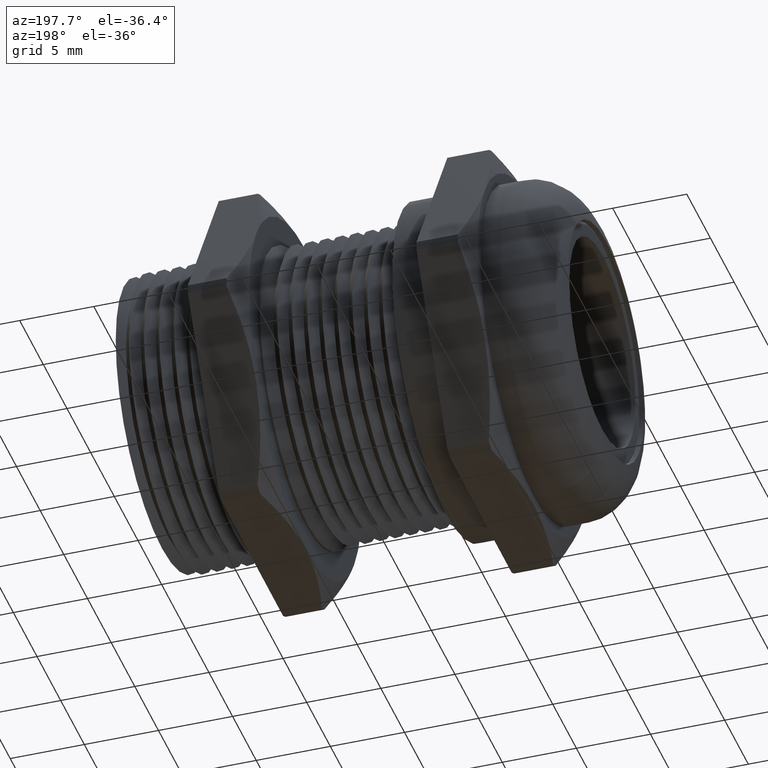
[diagram: clean part render]
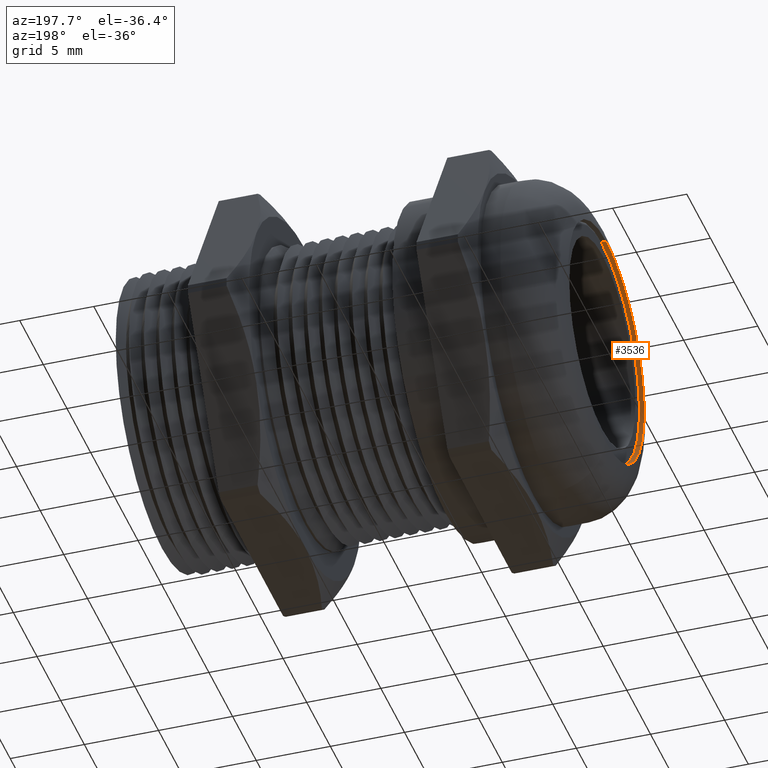
[diagram: same view with one face highlighted and labeled with its STEP entity id]
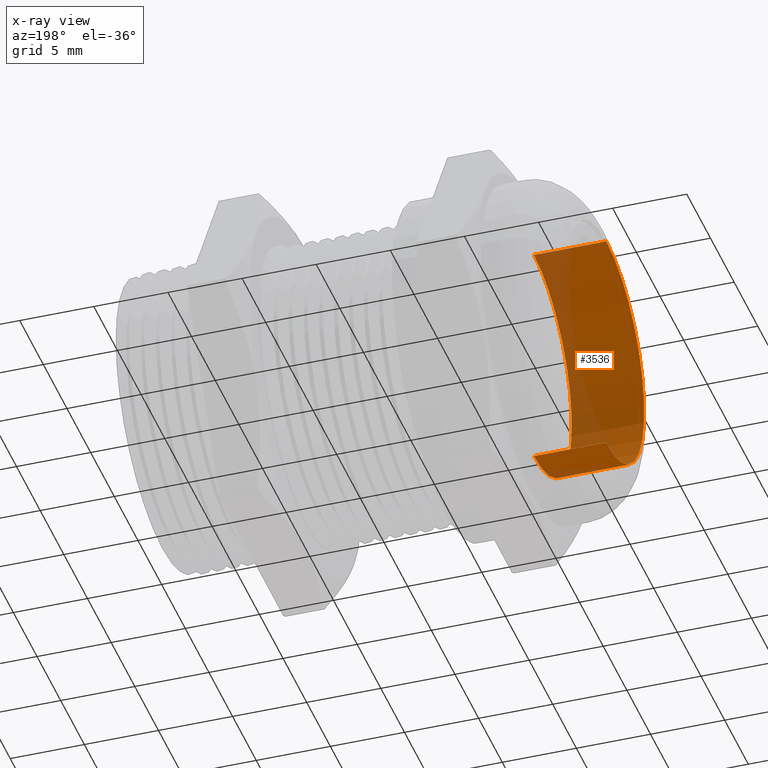
[diagram: x-ray of the same camera — body ghosted, the highlighted face saturated]
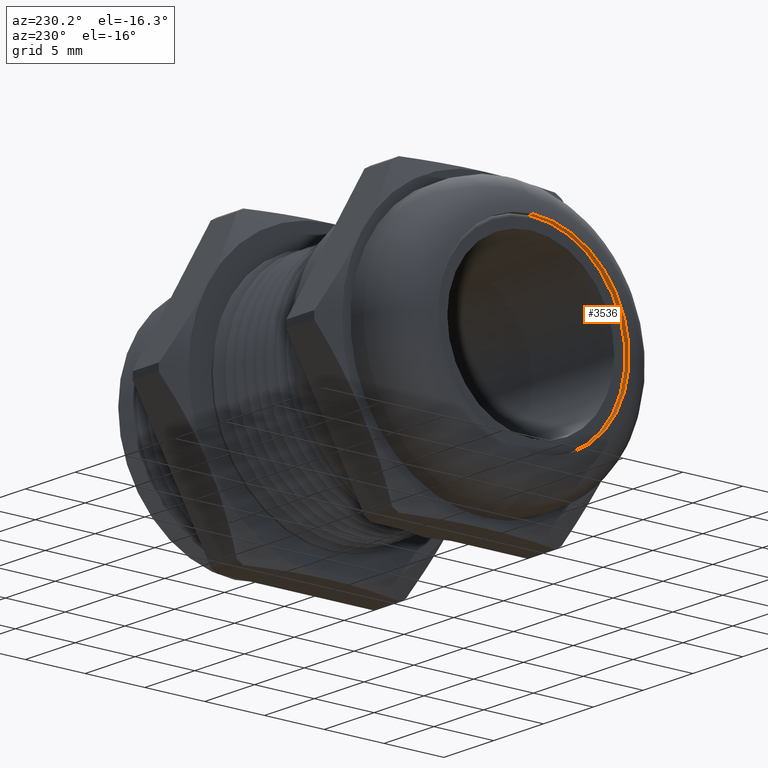
[diagram: same view with one face highlighted and labeled with its STEP entity id]
A machine part, auxiliary view. The second image highlights one B-rep face of the part: STEP entity #3536.
The next image is the same camera in x-ray: the body ghosted, the highlighted face saturated — about 26% of this face is hidden behind the body in this view.
A second angle (auxiliary view) of the same face is appended — the face is thin or edge-on in the first view.
In plain terms, the highlighted cylindrical surface (partial cylindrical patch) has radius 8.0264 mm, axis along (-1, 0, 0).
Its self-contained STEP definition (entity closure, byte-faithful):
#2101 = CARTESIAN_POINT ( 'NONE',  ( -0.5899999999999999700, 3.869883885305636800E-017, -0.3160000000000000600 ) ) ;
#2136 = CARTESIAN_POINT ( 'NONE',  ( -0.5899999999999999700, 0.0000000000000000000, 0.3160000000000000600 ) ) ;
#2522 = DIRECTION ( 'NONE',  ( -1.000000000000000000, 0.0000000000000000000, 0.0000000000000000000 ) ) ;
#2523 = VECTOR ( 'NONE', #2522, 39.37007874015748100 ) ;
#2524 = CARTESIAN_POINT ( 'NONE',  ( -2.719493435091831800, 3.869883885305636800E-017, -0.3160000000000000600 ) ) ;
#2525 = LINE ( 'NONE', #2524, #2523 ) ;
#2526 = CARTESIAN_POINT ( 'NONE',  ( -0.3979999999999999600, 0.0000000000000000000, 0.3160000000000000600 ) ) ;
#2527 = CARTESIAN_POINT ( 'NONE',  ( -0.3979999999999999600, 3.869883885305636800E-017, -0.3160000000000000600 ) ) ;
#2528 = DIRECTION ( 'NONE',  ( 0.0000000000000000000, 0.0000000000000000000, 1.000000000000000000 ) ) ;
#2529 = DIRECTION ( 'NONE',  ( -1.000000000000000000, 0.0000000000000000000, 0.0000000000000000000 ) ) ;
#2530 = CARTESIAN_POINT ( 'NONE',  ( -0.3979999999999999600, 0.0000000000000000000, 0.0000000000000000000 ) ) ;
#2531 = AXIS2_PLACEMENT_3D ( 'NONE', #2530, #2529, #2528 ) ;
#2532 = CIRCLE ( 'NONE', #2531, 0.3160000000000000600 ) ;
#2536 = DIRECTION ( 'NONE',  ( -1.000000000000000000, 0.0000000000000000000, 0.0000000000000000000 ) ) ;
#2537 = VECTOR ( 'NONE', #2536, 39.37007874015748100 ) ;
#2538 = CARTESIAN_POINT ( 'NONE',  ( -2.719493435091831800, 0.0000000000000000000, 0.3160000000000000600 ) ) ;
#2539 = DIRECTION ( 'NONE',  ( 0.0000000000000000000, 0.0000000000000000000, 1.000000000000000000 ) ) ;
#2540 = DIRECTION ( 'NONE',  ( -1.000000000000000000, 0.0000000000000000000, 0.0000000000000000000 ) ) ;
#2541 = CARTESIAN_POINT ( 'NONE',  ( -0.5899999999999999700, 0.0000000000000000000, 0.0000000000000000000 ) ) ;
#2542 = AXIS2_PLACEMENT_3D ( 'NONE', #2541, #2540, #2539 ) ;
#2543 = CIRCLE ( 'NONE', #2542, 0.3160000000000000600 ) ;
#2544 = LINE ( 'NONE', #2538, #2537 ) ;
#2572 = DIRECTION ( 'NONE',  ( 0.0000000000000000000, 0.0000000000000000000, 1.000000000000000000 ) ) ;
#2573 = DIRECTION ( 'NONE',  ( -1.000000000000000000, 0.0000000000000000000, 0.0000000000000000000 ) ) ;
#2574 = CARTESIAN_POINT ( 'NONE',  ( -2.719493435091831800, 0.0000000000000000000, 0.0000000000000000000 ) ) ;
#2575 = AXIS2_PLACEMENT_3D ( 'NONE', #2574, #2573, #2572 ) ;
#2576 = CYLINDRICAL_SURFACE ( 'NONE', #2575, 0.3160000000000000600 ) ;
#2578 = FACE_OUTER_BOUND ( 'NONE', #3494, .T. ) ;
#3303 = VERTEX_POINT ( 'NONE', #2101 ) ;
#3316 = VERTEX_POINT ( 'NONE', #2136 ) ;
#3494 = EDGE_LOOP ( 'NONE', ( #3495, #3499, #3522, #3524 ) ) ;
#3495 = ORIENTED_EDGE ( 'NONE', *, *, #3496, .F. ) ;
#3496 = EDGE_CURVE ( 'NONE', #3497, #3498, #2532, .T. ) ;
#3497 = VERTEX_POINT ( 'NONE', #2527 ) ;
#3498 = VERTEX_POINT ( 'NONE', #2526 ) ;
#3499 = ORIENTED_EDGE ( 'NONE', *, *, #3500, .T. ) ;
#3500 = EDGE_CURVE ( 'NONE', #3497, #3303, #2525, .T. ) ;
#3522 = ORIENTED_EDGE ( 'NONE', *, *, #3523, .T. ) ;
#3523 = EDGE_CURVE ( 'NONE', #3303, #3316, #2543, .T. ) ;
#3524 = ORIENTED_EDGE ( 'NONE', *, *, #3525, .F. ) ;
#3525 = EDGE_CURVE ( 'NONE', #3498, #3316, #2544, .T. ) ;
#3536 = ADVANCED_FACE ( 'NONE', ( #2578 ), #2576, .F. ) ;